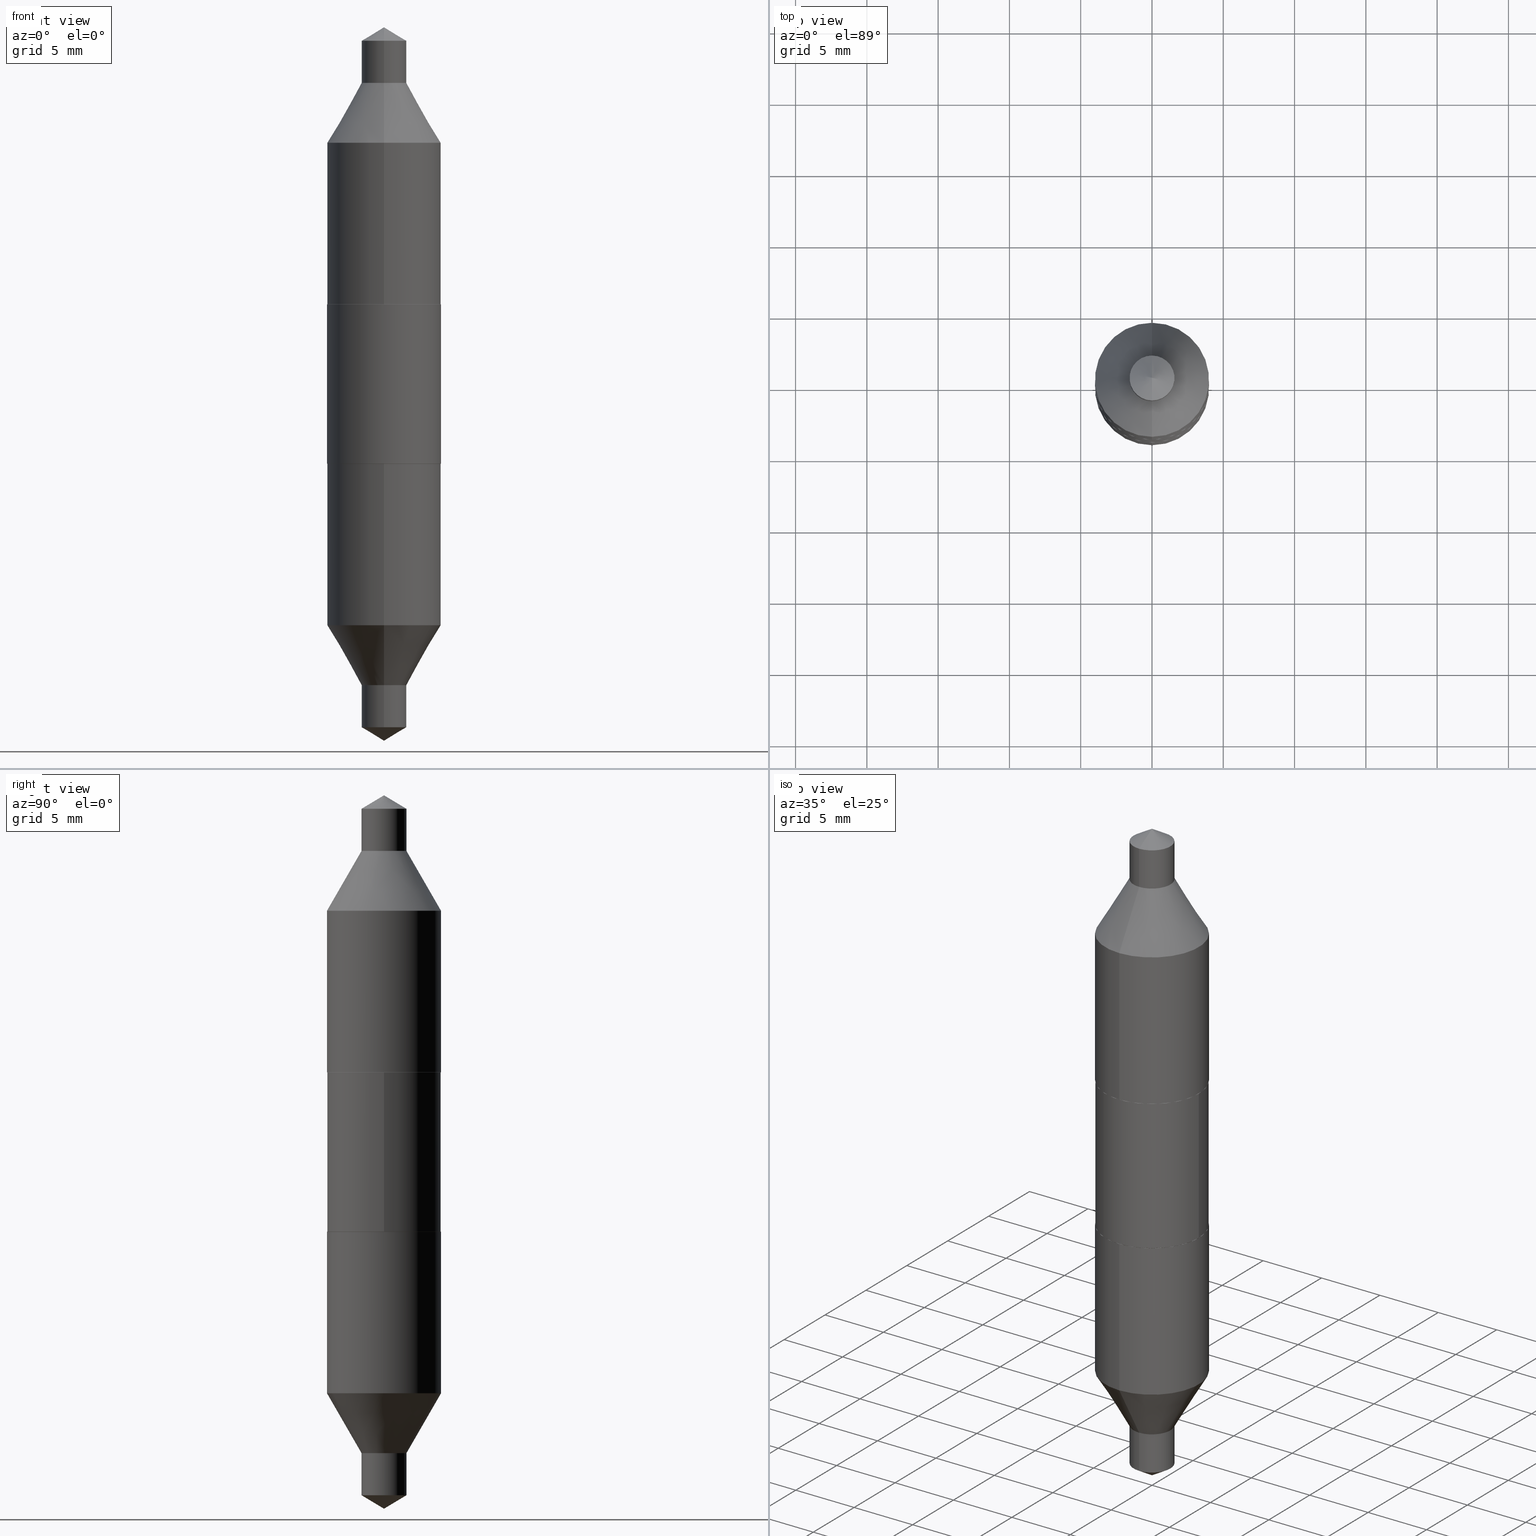
[diagram: canonical four-view strip — front | top / right | iso, engineering-drawing reading convention]
A machine part, canonical four-view strip (front | top / right | iso — engineering-drawing reading convention). The complete STEP part file that produces these views, byte-faithful:
ISO-10303-21;
HEADER;
FILE_DESCRIPTION (( 'STEP AP203' ),
    '1' );
FILE_NAME ('67049.STEP',
    '2024-04-19T15:18:10',
    ( '' ),
    ( '' ),
    'SwSTEP 2.0',
    'SolidWorks 2023',
    '' );
FILE_SCHEMA (( 'CONFIG_CONTROL_DESIGN' ));
ENDSEC;

DATA;
#1 = DIRECTION ( 'NONE',  ( -6.982962677686264344E-15, -1.000000000000000000, 3.469013325287952504E-15 ) ) ;
#2 = ORIENTED_EDGE ( 'NONE', *, *, #590, .T. ) ;
#3 = PERSON_AND_ORGANIZATION_ROLE ( 'classification_officer' ) ;
#4 = ADVANCED_FACE ( 'NONE', ( #151 ), #224, .T. ) ;
#5 = LINE ( 'NONE', #665, #392 ) ;
#6 = EDGE_LOOP ( 'NONE', ( #476, #217, #679, #511 ) ) ;
#7 = DATE_AND_TIME ( #544, #285 ) ;
#8 = ORIENTED_EDGE ( 'NONE', *, *, #218, .F. ) ;
#9 = APPLICATION_CONTEXT ( 'configuration controlled 3d designs of mechanical parts and assemblies' ) ;
#10 = CARTESIAN_POINT ( 'NONE',  ( 1.119104808822163125E-15, 0.1574999999999992795, -0.2200000000000005285 ) ) ;
#11 = VERTEX_POINT ( 'NONE', #312 ) ;
#12 = VECTOR ( 'NONE', #37, 39.37007874015748143 ) ;
#13 = CARTESIAN_POINT ( 'NONE',  ( 5.380031373607300737E-30, -7.681258945454921386E-16, -0.2200000000000000011 ) ) ;
#14 = AXIS2_PLACEMENT_3D ( 'NONE', #152, #482, #696 ) ;
#15 = DIRECTION ( 'NONE',  ( -6.982962677686265922E-15, -1.000000000000000000, 4.406206441393972551E-15 ) ) ;
#16 = ORIENTED_EDGE ( 'NONE', *, *, #639, .F. ) ;
#17 = AXIS2_PLACEMENT_3D ( 'NONE', #521, #194, #371 ) ;
#18 = CARTESIAN_POINT ( 'NONE',  ( -5.380031373607299336E-30, 7.681258945454920400E-16, 0.2199999999999999734 ) ) ;
#19 = EDGE_CURVE ( 'NONE', #595, #509, #673, .T. ) ;
#20 = DIRECTION ( 'NONE',  ( 1.000000000000000000, -6.982962677686267499E-15, 0.000000000000000000 ) ) ;
#21 = CARTESIAN_POINT ( 'NONE',  ( -1.634634905970335902E-29, 2.317425452117836237E-15, 0.6660891478771698848 ) ) ;
#22 = DIRECTION ( 'NONE',  ( -0.7071067811865715536, 2.382254525458957283E-15, -0.7071067811865232589 ) ) ;
#23 = ADVANCED_FACE ( 'NONE', ( #377 ), #589, .T. ) ;
#24 = EDGE_CURVE ( 'NONE', #458, #213, #49, .T. ) ;
#25 = ADVANCED_FACE ( 'NONE', ( #261 ), #619, .T. ) ;
#26 = ORIENTED_EDGE ( 'NONE', *, *, #439, .F. ) ;
#27 = CARTESIAN_POINT ( 'NONE',  ( 5.380031373607300737E-30, -7.681258945454921386E-16, -0.2200000000000000011 ) ) ;
#28 = VERTEX_POINT ( 'NONE', #566 ) ;
#29 = DIRECTION ( 'NONE',  ( -2.432613365236688124E-29, 3.509891061967582916E-15, 1.000000000000000000 ) ) ;
#30 = ORIENTED_EDGE ( 'NONE', *, *, #351, .T. ) ;
#31 = DIRECTION ( 'NONE',  ( 1.000000000000000000, -6.982962677686267499E-15, 0.000000000000000000 ) ) ;
#32 = ORIENTED_EDGE ( 'NONE', *, *, #193, .F. ) ;
#33 = AXIS2_PLACEMENT_3D ( 'NONE', #584, #102, #316 ) ;
#34 = CARTESIAN_POINT ( 'NONE',  ( -5.380031373607300737E-30, 7.681258945454921386E-16, 0.2200000000000000011 ) ) ;
#35 = VECTOR ( 'NONE', #477, 39.37007874015748143 ) ;
#36 = VECTOR ( 'NONE', #699, 39.37007874015748143 ) ;
#37 = DIRECTION ( 'NONE',  ( -2.445468806185136877E-29, 3.491481338843145188E-15, 1.000000000000000000 ) ) ;
#38 = ADVANCED_FACE ( 'NONE', ( #85 ), #157, .T. ) ;
#39 = CARTESIAN_POINT ( 'NONE',  ( -2.327040352225928609E-29, 3.295642098991542367E-15, 0.9477466416202916522 ) ) ;
#40 = CYLINDRICAL_SURFACE ( 'NONE', #518, 0.1575000000000000289 ) ;
#41 = ADVANCED_FACE ( 'NONE', ( #293 ), #202, .T. ) ;
#42 = CIRCLE ( 'NONE', #401, 0.1575000000000000289 ) ;
#43 = DIRECTION ( 'NONE',  ( 5.880594550222097024E-15, 0.8571673007021126667, -0.5150380749100534894 ) ) ;
#44 = CYLINDRICAL_SURFACE ( 'NONE', #146, 0.06200000000000001343 ) ;
#45 = DIRECTION ( 'NONE',  ( -2.445468806185136597E-29, 3.491481338843145583E-15, 1.000000000000000000 ) ) ;
#46 = ADVANCED_FACE ( 'NONE', ( #242 ), #183, .T. ) ;
#47 = CIRCLE ( 'NONE', #168, 0.1570000000000000007 ) ;
#48 = DIRECTION ( 'NONE',  ( -2.445468806185136597E-29, 3.491481338843145583E-15, 1.000000000000000000 ) ) ;
#49 = LINE ( 'NONE', #136, #82 ) ;
#50 = DIRECTION ( 'NONE',  ( -2.445468806185136597E-29, 3.491481338843145583E-15, 1.000000000000000000 ) ) ;
#51 = ADVANCED_FACE ( 'NONE', ( #427 ), #40, .T. ) ;
#52 = ORIENTED_EDGE ( 'NONE', *, *, #218, .T. ) ;
#53 = EDGE_LOOP ( 'NONE', ( #321, #107, #690, #274 ) ) ;
#54 = FACE_OUTER_BOUND ( 'NONE', #67, .T. ) ;
#55 = VERTEX_POINT ( 'NONE', #525 ) ;
#56 = PERSON_AND_ORGANIZATION ( #181, #414 ) ;
#57 = VERTEX_POINT ( 'NONE', #154 ) ;
#58 = CARTESIAN_POINT ( 'NONE',  ( 2.025546210202964853E-29, -2.914424278938668661E-15, -0.8315000000000000169 ) ) ;
#59 = CARTESIAN_POINT ( 'NONE',  ( -1.099816621735592016E-15, -0.1574999999999992517, 0.2200000000000005562 ) ) ;
#60 = EDGE_LOOP ( 'NONE', ( #26, #30, #480, #163 ) ) ;
#61 = DIRECTION ( 'NONE',  ( 1.000000000000000000, 0.000000000000000000, 0.000000000000000000 ) ) ;
#62 = ADVANCED_FACE ( 'NONE', ( #372 ), #555, .T. ) ;
#63 = DIRECTION ( 'NONE',  ( -2.445468806185136597E-29, 3.491481338843145583E-15, 1.000000000000000000 ) ) ;
#64 = ORIENTED_EDGE ( 'NONE', *, *, #193, .T. ) ;
#65 = APPROVAL_DATE_TIME ( #534, #669 ) ;
#66 = DIRECTION ( 'NONE',  ( 2.458324247133585070E-29, -3.473071615718708250E-15, -1.000000000000000000 ) ) ;
#67 = EDGE_LOOP ( 'NONE', ( #244, #266 ) ) ;
#68 = CARTESIAN_POINT ( 'NONE',  ( 5.380031373607300737E-30, -7.681258945454921386E-16, -0.2200000000000000011 ) ) ;
#69 = ORIENTED_EDGE ( 'NONE', *, *, #561, .F. ) ;
#70 = COORDINATED_UNIVERSAL_TIME_OFFSET ( 5, 0, .BEHIND. ) ;
#71 = EDGE_CURVE ( 'NONE', #625, #55, #167, .T. ) ;
#72 = ORIENTED_EDGE ( 'NONE', *, *, #241, .F. ) ;
#73 = EDGE_CURVE ( 'NONE', #462, #294, #505, .T. ) ;
#74 = CARTESIAN_POINT ( 'NONE',  ( -5.380031373607300737E-30, 7.681258945454921386E-16, 0.2200000000000000011 ) ) ;
#75 = CIRCLE ( 'NONE', #129, 0.1570000000000000007 ) ;
#76 = PRODUCT_DEFINITION_FORMATION_WITH_SPECIFIED_SOURCE ( 'ANY', '', #288, .NOT_KNOWN. ) ;
#77 = AXIS2_PLACEMENT_3D ( 'NONE', #108, #490, #1 ) ;
#78 = DIRECTION ( 'NONE',  ( -2.432613365236688124E-29, 3.509891061967582916E-15, 1.000000000000000000 ) ) ;
#79 = FACE_OUTER_BOUND ( 'NONE', #60, .T. ) ;
#80 = VECTOR ( 'NONE', #22, 39.37007874015748854 ) ;
#81 = APPROVAL ( #438, 'UNSPECIFIED' ) ;
#82 = VECTOR ( 'NONE', #620, 39.37007874015748143 ) ;
#83 = ORIENTED_EDGE ( 'NONE', *, *, #24, .T. ) ;
#84 = CONICAL_SURFACE ( 'NONE', #353, 0.1570000000000000007, 0.7853981633974824739 ) ;
#85 = FACE_OUTER_BOUND ( 'NONE', #279, .T. ) ;
#86 = CC_DESIGN_APPROVAL ( #81, ( #76 ) ) ;
#87 = ORIENTED_EDGE ( 'NONE', *, *, #71, .T. ) ;
#88 = ORIENTED_EDGE ( 'NONE', *, *, #451, .F. ) ;
#89 = CARTESIAN_POINT ( 'NONE',  ( -5.380031373607300737E-30, 7.681258945454921386E-16, 0.2200000000000000011 ) ) ;
#90 = ORIENTED_EDGE ( 'NONE', *, *, #643, .T. ) ;
#91 = DIRECTION ( 'NONE',  ( 1.000000000000000000, -6.982962677686266711E-15, 0.000000000000000000 ) ) ;
#92 = CC_DESIGN_PERSON_AND_ORGANIZATION_ASSIGNMENT ( #156, #3, ( #468 ) ) ;
#93 = DIRECTION ( 'NONE',  ( -2.458324247133585070E-29, 3.473071615718708250E-15, 1.000000000000000000 ) ) ;
#94 = CARTESIAN_POINT ( 'NONE',  ( 0.000000000000000000, 0.000000000000000000, 0.000000000000000000 ) ) ;
#95 = CARTESIAN_POINT ( 'NONE',  ( -5.380031373607299336E-30, 7.681258945454920400E-16, 0.2199999999999999734 ) ) ;
#96 = DIRECTION ( 'NONE',  ( -1.000000000000000000, 6.982962677686265922E-15, -4.876176775795935793E-29 ) ) ;
#97 = CARTESIAN_POINT ( 'NONE',  ( 1.080528434649005327E-15, 0.1575000000000007505, 0.2199999999999994738 ) ) ;
#98 = DIRECTION ( 'NONE',  ( -6.982962677686265922E-15, -1.000000000000000000, 3.304654831045479019E-15 ) ) ;
#99 = EDGE_CURVE ( 'NONE', #236, #294, #519, .T. ) ;
#100 = FACE_OUTER_BOUND ( 'NONE', #597, .T. ) ;
#101 = CARTESIAN_POINT ( 'NONE',  ( 4.405364961712852849E-16, 0.06199999999999709216, -0.8315000000000002389 ) ) ;
#102 = DIRECTION ( 'NONE',  ( 2.458324247133585070E-29, -3.473071615718708250E-15, -1.000000000000000000 ) ) ;
#103 = VECTOR ( 'NONE', #283, 39.37007874015748143 ) ;
#104 = FACE_OUTER_BOUND ( 'NONE', #173, .T. ) ;
#105 = CIRCLE ( 'NONE', #259, 0.06200000000000001343 ) ;
#106 = DATE_TIME_ROLE ( 'classification_date' ) ;
#107 = ORIENTED_EDGE ( 'NONE', *, *, #307, .T. ) ;
#108 = CARTESIAN_POINT ( 'NONE',  ( 1.623165560573778972E-29, -2.333850207520305882E-15, -0.6660891478771698848 ) ) ;
#109 = ORIENTED_EDGE ( 'NONE', *, *, #594, .T. ) ;
#110 = CALENDAR_DATE ( 2024, 19, 4 ) ;
#111 = DIRECTION ( 'NONE',  ( -2.432613365236688124E-29, 3.509891061967582916E-15, 1.000000000000000000 ) ) ;
#112 = EDGE_CURVE ( 'NONE', #55, #591, #682, .T. ) ;
#113 = VERTEX_POINT ( 'NONE', #648 ) ;
#114 = CALENDAR_DATE ( 2024, 19, 4 ) ;
#115 = AXIS2_PLACEMENT_3D ( 'NONE', #582, #533, #510 ) ;
#116 = LINE ( 'NONE', #268, #36 ) ;
#117 = CIRCLE ( 'NONE', #446, 0.06200000000000000649 ) ;
#118 = ORIENTED_EDGE ( 'NONE', *, *, #421, .T. ) ;
#119 = CALENDAR_DATE ( 2024, 19, 4 ) ;
#120 = DIRECTION ( 'NONE',  ( -6.982962677686264344E-15, -1.000000000000000000, 3.469013325287952504E-15 ) ) ;
#121 = DIRECTION ( 'NONE',  ( 1.000000000000000000, -6.982962677686264344E-15, 0.000000000000000000 ) ) ;
#122 = DATE_AND_TIME ( #110, #239 ) ;
#123 = ADVANCED_FACE ( 'NONE', ( #161 ), #486, .F. ) ;
#124 = ORIENTED_EDGE ( 'NONE', *, *, #267, .T. ) ;
#125 = LINE ( 'NONE', #169, #80 ) ;
#126 = ORIENTED_EDGE ( 'NONE', *, *, #514, .F. ) ;
#127 = CARTESIAN_POINT ( 'NONE',  ( 0.1570000000000000007, -1.864451034942235626E-15, -0.2200000000000000011 ) ) ;
#128 = CLOSED_SHELL ( 'NONE', ( #271, #687, #507, #41, #186, #23, #209, #4 ) ) ;
#129 = AXIS2_PLACEMENT_3D ( 'NONE', #681, #63, #121 ) ;
#130 = PRODUCT_DEFINITION_SHAPE ( 'NONE', 'NONE',  #546 ) ;
#131 = CONICAL_SURFACE ( 'NONE', #269, 0.06200000000000000649, 0.5235987755982927094 ) ;
#132 = FACE_OUTER_BOUND ( 'NONE', #500, .T. ) ;
#133 = CC_DESIGN_PERSON_AND_ORGANIZATION_ASSIGNMENT ( #56, #550, ( #288 ) ) ;
#134 = ORIENTED_EDGE ( 'NONE', *, *, #599, .F. ) ;
#135 = DIRECTION ( 'NONE',  ( -2.458324247133585070E-29, 3.473071615718708250E-15, 1.000000000000000000 ) ) ;
#136 = CARTESIAN_POINT ( 'NONE',  ( -2.421449383426581209E-29, 3.420975541482927393E-15, 0.9849999999999999867 ) ) ;
#137 = EDGE_LOOP ( 'NONE', ( #685, #675, #2, #90 ) ) ;
#138 = APPROVAL_PERSON_ORGANIZATION ( #264, #669, #598 ) ;
#139 = LINE ( 'NONE', #256, #379 ) ;
#140 = EDGE_LOOP ( 'NONE', ( #491, #502, #443 ) ) ;
#141 = CARTESIAN_POINT ( 'NONE',  ( 2.025546210202964853E-29, -2.914424278938668661E-15, -0.8315000000000000169 ) ) ;
#142 = EDGE_CURVE ( 'NONE', #213, #462, #329, .T. ) ;
#143 = LINE ( 'NONE', #299, #12 ) ;
#144 = CONICAL_SURFACE ( 'NONE', #654, 65.52281426576907108, 1.029744258676658752 ) ;
#145 = CARTESIAN_POINT ( 'NONE',  ( 2.396124164758137629E-29, -3.457242696038069614E-15, -0.9849999999999999867 ) ) ;
#146 = AXIS2_PLACEMENT_3D ( 'NONE', #198, #251, #420 ) ;
#147 = CARTESIAN_POINT ( 'NONE',  ( -2.041268414482917372E-29, 2.891909187557482556E-15, 0.8315000000000000169 ) ) ;
#148 = ADVANCED_FACE ( 'NONE', ( #227 ), #508, .T. ) ;
#149 = FACE_OUTER_BOUND ( 'NONE', #226, .T. ) ;
#150 = FACE_OUTER_BOUND ( 'NONE', #165, .T. ) ;
#151 = FACE_OUTER_BOUND ( 'NONE', #137, .T. ) ;
#152 = CARTESIAN_POINT ( 'NONE',  ( 5.380031373607299336E-30, -7.681258945454920400E-16, -0.2199999999999999734 ) ) ;
#153 = DIRECTION ( 'NONE',  ( -2.458324247133585070E-29, 3.473071615718708250E-15, 1.000000000000000000 ) ) ;
#154 = CARTESIAN_POINT ( 'NONE',  ( -1.099816621735581367E-15, -0.1575000000000007505, -0.2199999999999994738 ) ) ;
#155 = DIRECTION ( 'NONE',  ( -2.438088387897960049E-29, 3.491481338843145188E-15, 1.000000000000000000 ) ) ;
#156 = PERSON_AND_ORGANIZATION ( #181, #414 ) ;
#157 = CYLINDRICAL_SURFACE ( 'NONE', #585, 0.06200000000000001343 ) ;
#158 = VECTOR ( 'NONE', #111, 39.37007874015748143 ) ;
#159 = ORIENTED_EDGE ( 'NONE', *, *, #292, .T. ) ;
#160 = MECHANICAL_CONTEXT ( 'NONE', #9, 'mechanical' ) ;
#161 = FACE_OUTER_BOUND ( 'NONE', #537, .T. ) ;
#162 = EDGE_CURVE ( 'NONE', #28, #437, #276, .T. ) ;
#163 = ORIENTED_EDGE ( 'NONE', *, *, #590, .F. ) ;
#164 = APPLICATION_PROTOCOL_DEFINITION ( 'international standard', 'config_control_design', 1994, #9 ) ;
#165 = EDGE_LOOP ( 'NONE', ( #126, #124, #616, #409 ) ) ;
#166 = CALENDAR_DATE ( 2024, 19, 4 ) ;
#167 = LINE ( 'NONE', #336, #158 ) ;
#168 = AXIS2_PLACEMENT_3D ( 'NONE', #13, #672, #175 ) ;
#169 = CARTESIAN_POINT ( 'NONE',  ( -0.1570000000000000007, 1.845224080195622605E-15, 0.2200000000000000011 ) ) ;
#170 = ORIENTED_EDGE ( 'NONE', *, *, #99, .T. ) ;
#171 = CARTESIAN_POINT ( 'NONE',  ( 0.000000000000000000, 0.000000000000000000, 0.000000000000000000 ) ) ;
#172 = ADVANCED_FACE ( 'NONE', ( #663 ), #258, .T. ) ;
#173 = EDGE_LOOP ( 'NONE', ( #281, #64, #265, #484 ) ) ;
#174 = FACE_OUTER_BOUND ( 'NONE', #634, .T. ) ;
#175 = DIRECTION ( 'NONE',  ( 1.000000000000000000, -6.982962677686264344E-15, 0.000000000000000000 ) ) ;
#176 = CIRCLE ( 'NONE', #538, 0.06200000000000001343 ) ;
#177 = LINE ( 'NONE', #606, #348 ) ;
#178 = CARTESIAN_POINT ( 'NONE',  ( 4.253508758618117932E-16, 0.06200000000000333716, 0.9477466416202913191 ) ) ;
#179 = EDGE_CURVE ( 'NONE', #617, #57, #627, .T. ) ;
#180 = VERTEX_POINT ( 'NONE', #640 ) ;
#181 = PERSON ( 'UNSPECIFIED', 'UNSPECIFIED', 'UNSPECIFIED', ('UNSPECIFIED'), ('UNSPECIFIED'), ('UNSPECIFIED') ) ;
#182 = ORIENTED_EDGE ( 'NONE', *, *, #307, .F. ) ;
#183 = CYLINDRICAL_SURFACE ( 'NONE', #680, 0.1575000000000000289 ) ;
#184 = AXIS2_PLACEMENT_3D ( 'NONE', #27, #257, #199 ) ;
#185 = ORIENTED_EDGE ( 'NONE', *, *, #73, .F. ) ;
#186 = ADVANCED_FACE ( 'NONE', ( #586 ), #587, .T. ) ;
#187 = VECTOR ( 'NONE', #384, 39.37007874015748143 ) ;
#188 = CARTESIAN_POINT ( 'NONE',  ( 0.1575000000000000289, -1.866196775611657524E-15, -0.2195000000000000007 ) ) ;
#189 = APPROVAL_PERSON_ORGANIZATION ( #382, #613, #596 ) ;
#190 = VECTOR ( 'NONE', #692, 39.37007874015748143 ) ;
#191 = LENGTH_MEASURE_WITH_UNIT ( LENGTH_MEASURE( 0.02539999999999999897 ), #201 );
#192 = ORIENTED_EDGE ( 'NONE', *, *, #426, .F. ) ;
#193 = EDGE_CURVE ( 'NONE', #447, #180, #249, .T. ) ;
#194 = DIRECTION ( 'NONE',  ( -2.432613365236688124E-29, 3.509891061967582916E-15, 1.000000000000000000 ) ) ;
#195 = ADVANCED_FACE ( 'NONE', ( #423 ), #305, .T. ) ;
#196 = CC_DESIGN_PERSON_AND_ORGANIZATION_ASSIGNMENT ( #603, #334, ( #546 ) ) ;
#197 = DIRECTION ( 'NONE',  ( -2.445468806185136597E-29, 3.491481338843145583E-15, 1.000000000000000000 ) ) ;
#198 = CARTESIAN_POINT ( 'NONE',  ( 5.380031373607299336E-30, -7.681258945454920400E-16, -0.2199999999999999734 ) ) ;
#199 = DIRECTION ( 'NONE',  ( -1.000000000000000000, 6.982962677686265922E-15, -4.876176775795935793E-29 ) ) ;
#200 = CIRCLE ( 'NONE', #600, 0.1575000000000000011 ) ;
#201 =( LENGTH_UNIT ( ) NAMED_UNIT ( * ) SI_UNIT ( $, .METRE. ) );
#202 = PLANE ( 'NONE',  #184 ) ;
#203 =( CONVERSION_BASED_UNIT ( 'INCH', #191 ) LENGTH_UNIT ( ) NAMED_UNIT ( #330 ) );
#204 = ORIENTED_EDGE ( 'NONE', *, *, #631, .T. ) ;
#205 = VECTOR ( 'NONE', #393, 39.37007874015748143 ) ;
#206 = AXIS2_PLACEMENT_3D ( 'NONE', #562, #238, #560 ) ;
#207 = DIRECTION ( 'NONE',  ( -6.982962677686265922E-15, -1.000000000000000000, 4.406206441393972551E-15 ) ) ;
#208 = CARTESIAN_POINT ( 'NONE',  ( 5.367804029576374824E-30, -7.663801538760705364E-16, -0.2195000000000000007 ) ) ;
#209 = ADVANCED_FACE ( 'NONE', ( #149 ), #366, .T. ) ;
#210 = VECTOR ( 'NONE', #445, 39.37007874015748143 ) ;
#211 = PLANE ( 'NONE',  #436 ) ;
#212 = DIRECTION ( 'NONE',  ( -2.432613365236688124E-29, 3.509891061967582916E-15, 1.000000000000000000 ) ) ;
#213 = VERTEX_POINT ( 'NONE', #310 ) ;
#214 = CIRCLE ( 'NONE', #77, 0.1575000000000000289 ) ;
#215 = ADVANCED_FACE ( 'NONE', ( #528 ), #255, .T. ) ;
#216 = CARTESIAN_POINT ( 'NONE',  ( -5.713111244066927989E-30, 7.204269613227826822E-16, 0.2199999999999999734 ) ) ;
#217 = ORIENTED_EDGE ( 'NONE', *, *, #514, .T. ) ;
#218 = EDGE_CURVE ( 'NONE', #180, #394, #248, .T. ) ;
#219 = DIRECTION ( 'NONE',  ( -6.982962677686265922E-15, -1.000000000000000000, 4.406206441393972551E-15 ) ) ;
#220 = ORIENTED_EDGE ( 'NONE', *, *, #439, .T. ) ;
#221 = DATE_AND_TIME ( #114, #489 ) ;
#222 = CARTESIAN_POINT ( 'NONE',  ( 2.401830158674149649E-29, -3.449142417863316824E-15, -0.9849999999999999867 ) ) ;
#223 = VERTEX_POINT ( 'NONE', #661 ) ;
#224 = CONICAL_SURFACE ( 'NONE', #422, 0.1570000000000000007, 0.7853981633974824739 ) ;
#225 = CARTESIAN_POINT ( 'NONE',  ( 4.253508758618130751E-16, 0.06200000000000290001, 0.8314999999999996838 ) ) ;
#226 = EDGE_LOOP ( 'NONE', ( #516, #220 ) ) ;
#227 = FACE_OUTER_BOUND ( 'NONE', #659, .T. ) ;
#228 = LOCAL_TIME ( 11, 18, 10.00000000000000000, #319 ) ;
#229 = DIRECTION ( 'NONE',  ( 2.458324247133585070E-29, -3.473071615718708250E-15, -1.000000000000000000 ) ) ;
#230 = CARTESIAN_POINT ( 'NONE',  ( -2.041268414482917372E-29, 2.891909187557482556E-15, 0.8315000000000000169 ) ) ;
#231 = CARTESIAN_POINT ( 'NONE',  ( -4.329436860165689754E-16, -0.06199999999999711298, 0.8315000000000002389 ) ) ;
#232 = CIRCLE ( 'NONE', #298, 0.1570000000000000007 ) ;
#233 = CARTESIAN_POINT ( 'NONE',  ( -1.634634905970335902E-29, 2.317425452117836237E-15, 0.6660891478771698848 ) ) ;
#234 = DIRECTION ( 'NONE',  ( -2.432613365236688124E-29, 3.509891061967582916E-15, 1.000000000000000000 ) ) ;
#235 = ADVANCED_FACE ( 'NONE', ( #456 ), #290, .T. ) ;
#236 = VERTEX_POINT ( 'NONE', #280 ) ;
#237 = ORIENTED_EDGE ( 'NONE', *, *, #297, .T. ) ;
#238 = DIRECTION ( 'NONE',  ( -2.432613365236688124E-29, 3.509891061967582916E-15, 1.000000000000000000 ) ) ;
#239 = LOCAL_TIME ( 11, 18, 10.00000000000000000, #70 ) ;
#240 = ORIENTED_EDGE ( 'NONE', *, *, #403, .F. ) ;
#241 = EDGE_CURVE ( 'NONE', #247, #447, #47, .T. ) ;
#242 = FACE_OUTER_BOUND ( 'NONE', #53, .T. ) ;
#243 = EDGE_CURVE ( 'NONE', #462, #368, #117, .T. ) ;
#244 = ORIENTED_EDGE ( 'NONE', *, *, #569, .F. ) ;
#245 = DIRECTION ( 'NONE',  ( -6.982962677686265922E-15, -1.000000000000000000, 3.304654831045479019E-15 ) ) ;
#246 = CARTESIAN_POINT ( 'NONE',  ( -2.041268414482917372E-29, 2.891909187557482556E-15, 0.8315000000000000169 ) ) ;
#247 = VERTEX_POINT ( 'NONE', #432 ) ;
#248 = CIRCLE ( 'NONE', #646, 0.1575000000000000289 ) ;
#249 = LINE ( 'NONE', #577, #404 ) ;
#250 = LINE ( 'NONE', #630, #411 ) ;
#251 = DIRECTION ( 'NONE',  ( -2.432613365236688124E-29, 3.509891061967582916E-15, 1.000000000000000000 ) ) ;
#252 = CARTESIAN_POINT ( 'NONE',  ( 0.000000000000000000, 0.000000000000000000, 0.000000000000000000 ) ) ;
#253 = EDGE_CURVE ( 'NONE', #57, #11, #200, .T. ) ;
#254 = DIRECTION ( 'NONE',  ( -2.458324247133585070E-29, 3.473071615718708250E-15, 1.000000000000000000 ) ) ;
#255 = CYLINDRICAL_SURFACE ( 'NONE', #14, 0.06200000000000001343 ) ;
#256 = CARTESIAN_POINT ( 'NONE',  ( 0.1570000000000000007, -3.281992458512516935E-16, 0.2200000000000000011 ) ) ;
#257 = DIRECTION ( 'NONE',  ( 2.438088387897960049E-29, -3.491481338843145188E-15, -1.000000000000000000 ) ) ;
#258 = CONICAL_SURFACE ( 'NONE', #378, 65.52281426576907108, 1.029744258676658752 ) ;
#259 = AXIS2_PLACEMENT_3D ( 'NONE', #39, #153, #578 ) ;
#260 = DIRECTION ( 'NONE',  ( -2.458324247133585070E-29, 3.473071615718708250E-15, 1.000000000000000000 ) ) ;
#261 = FACE_OUTER_BOUND ( 'NONE', #645, .T. ) ;
#262 = ADVANCED_FACE ( 'NONE', ( #100 ), #313, .T. ) ;
#263 = ORIENTED_EDGE ( 'NONE', *, *, #400, .T. ) ;
#264 = PERSON_AND_ORGANIZATION ( #181, #414 ) ;
#265 = ORIENTED_EDGE ( 'NONE', *, *, #419, .F. ) ;
#266 = ORIENTED_EDGE ( 'NONE', *, *, #19, .F. ) ;
#267 = EDGE_CURVE ( 'NONE', #591, #55, #531, .T. ) ;
#268 = CARTESIAN_POINT ( 'NONE',  ( 4.405364961712823759E-16, 0.06199999999999709216, -0.8315000000000002389 ) ) ;
#269 = AXIS2_PLACEMENT_3D ( 'NONE', #465, #524, #472 ) ;
#270 = PERSON_AND_ORGANIZATION_ROLE ( 'creator' ) ;
#271 = ADVANCED_FACE ( 'NONE', ( #79 ), #84, .T. ) ;
#272 = DIRECTION ( 'NONE',  ( 1.000000000000000000, -6.982962677686264344E-15, 0.000000000000000000 ) ) ;
#273 = DIRECTION ( 'NONE',  ( -2.432613365236688124E-29, 3.509891061967582916E-15, 1.000000000000000000 ) ) ;
#274 = ORIENTED_EDGE ( 'NONE', *, *, #179, .F. ) ;
#275 = ORIENTED_EDGE ( 'NONE', *, *, #629, .F. ) ;
#276 = LINE ( 'NONE', #222, #210 ) ;
#277 = ORIENTED_EDGE ( 'NONE', *, *, #289, .T. ) ;
#278 = DIRECTION ( 'NONE',  ( -6.982962677686264344E-15, -1.000000000000000000, 3.469013325287953293E-15 ) ) ;
#279 = EDGE_LOOP ( 'NONE', ( #650, #605, #300, #642 ) ) ;
#280 = CARTESIAN_POINT ( 'NONE',  ( 1.080528434649010849E-15, 0.1575000000000023603, 0.6660891478771693297 ) ) ;
#281 = ORIENTED_EDGE ( 'NONE', *, *, #241, .T. ) ;
#282 = AXIS2_PLACEMENT_3D ( 'NONE', #652, #493, #387 ) ;
#283 = DIRECTION ( 'NONE',  ( 2.458324247133584790E-29, -3.473071615718708644E-15, -1.000000000000000000 ) ) ;
#284 = DIRECTION ( 'NONE',  ( -2.445468806185136597E-29, 3.491481338843145583E-15, 1.000000000000000000 ) ) ;
#285 = LOCAL_TIME ( 11, 18, 10.00000000000000000, #588 ) ;
#286 = CARTESIAN_POINT ( 'NONE',  ( 4.253508758618295918E-16, 0.06200000000000078365, 0.2199999999999997791 ) ) ;
#287 = EDGE_CURVE ( 'NONE', #236, #595, #5, .T. ) ;
#288 = PRODUCT ( '67049', '67049', '', ( #160 ) ) ;
#289 = EDGE_CURVE ( 'NONE', #294, #236, #412, .T. ) ;
#290 = CONICAL_SURFACE ( 'NONE', #344, 65.52281426576907108, 1.029744258676658752 ) ;
#291 = EDGE_LOOP ( 'NONE', ( #418, #52, #204, #69 ) ) ;
#292 = EDGE_CURVE ( 'NONE', #447, #247, #75, .T. ) ;
#293 = FACE_OUTER_BOUND ( 'NONE', #540, .T. ) ;
#294 = VERTEX_POINT ( 'NONE', #658 ) ;
#295 = CARTESIAN_POINT ( 'NONE',  ( -4.329436860165282505E-16, -0.06200000000000292083, -0.8314999999999996838 ) ) ;
#296 = ORIENTED_EDGE ( 'NONE', *, *, #536, .T. ) ;
#297 = EDGE_CURVE ( 'NONE', #326, #368, #499, .T. ) ;
#298 = AXIS2_PLACEMENT_3D ( 'NONE', #34, #359, #91 ) ;
#299 = CARTESIAN_POINT ( 'NONE',  ( 0.1575000000000000289, -1.099816621735587283E-15, 7.679978421878599434E-30 ) ) ;
#300 = ORIENTED_EDGE ( 'NONE', *, *, #142, .T. ) ;
#301 = CARTESIAN_POINT ( 'NONE',  ( -0.1570000000000000007, 3.500754277719761618E-16, -0.2200000000000000011 ) ) ;
#302 = CARTESIAN_POINT ( 'NONE',  ( -1.099816621735592411E-15, -0.1574999999999992795, 0.2200000000000005285 ) ) ;
#303 = AXIS2_PLACEMENT_3D ( 'NONE', #545, #66, #396 ) ;
#304 = CIRCLE ( 'NONE', #684, 0.1575000000000000011 ) ;
#305 = CYLINDRICAL_SURFACE ( 'NONE', #474, 0.1575000000000000289 ) ;
#306 = DIRECTION ( 'NONE',  ( 1.000000000000000000, -6.982962677686267499E-15, 4.876176775795935232E-29 ) ) ;
#307 = EDGE_CURVE ( 'NONE', #223, #11, #504, .T. ) ;
#308 = DIRECTION ( 'NONE',  ( -2.432613365236688124E-29, 3.509891061967582916E-15, 1.000000000000000000 ) ) ;
#309 = CARTESIAN_POINT ( 'NONE',  ( -2.415842589307958785E-29, 3.429075819657680183E-15, 0.9849999999999999867 ) ) ;
#310 = CARTESIAN_POINT ( 'NONE',  ( -4.329436860165720816E-16, -0.06199999999999673828, 0.9477466416202918742 ) ) ;
#311 = DIRECTION ( 'NONE',  ( 2.458324247133584790E-29, -3.473071615718708644E-15, -1.000000000000000000 ) ) ;
#312 = CARTESIAN_POINT ( 'NONE',  ( 1.119104808822174169E-15, 0.1574999999999992517, -0.2200000000000005562 ) ) ;
#313 = CYLINDRICAL_SURFACE ( 'NONE', #662, 0.1575000000000000289 ) ;
#314 = DIRECTION ( 'NONE',  ( 6.982962677686265922E-15, 1.000000000000000000, -3.473071615718708644E-15 ) ) ;
#315 = AXIS2_PLACEMENT_3D ( 'NONE', #147, #431, #352 ) ;
#316 = DIRECTION ( 'NONE',  ( -6.982962677686263555E-15, -1.000000000000000000, 3.468864327941560293E-15 ) ) ;
#317 = EDGE_CURVE ( 'NONE', #55, #617, #670, .T. ) ;
#318 = CIRCLE ( 'NONE', #17, 0.06200000000000001343 ) ;
#319 = COORDINATED_UNIVERSAL_TIME_OFFSET ( 5, 0, .BEHIND. ) ;
#320 = DIRECTION ( 'NONE',  ( 1.000000000000000000, -6.982962677686267499E-15, 4.876176775795935232E-29 ) ) ;
#321 = ORIENTED_EDGE ( 'NONE', *, *, #467, .T. ) ;
#322 = APPROVAL_DATE_TIME ( #221, #81 ) ;
#323 = AXIS2_PLACEMENT_3D ( 'NONE', #671, #50, #523 ) ;
#324 = ORIENTED_EDGE ( 'NONE', *, *, #162, .T. ) ;
#325 = APPROVAL_ROLE ( '' ) ;
#326 = VERTEX_POINT ( 'NONE', #178 ) ;
#327 = SHAPE_DEFINITION_REPRESENTATION ( #130, #349 ) ;
#328 = UNCERTAINTY_MEASURE_WITH_UNIT (LENGTH_MEASURE( 1.000000000000000082E-05 ), #203, 'distance_accuracy_value', 'NONE');
#329 = LINE ( 'NONE', #657, #187 ) ;
#330 = DIMENSIONAL_EXPONENTS ( 1.000000000000000000, 0.000000000000000000, 0.000000000000000000, 0.000000000000000000, 0.000000000000000000, 0.000000000000000000, 0.000000000000000000 ) ;
#331 = ORIENTED_EDGE ( 'NONE', *, *, #400, .F. ) ;
#332 = DIRECTION ( 'NONE',  ( -2.432613365236688124E-29, 3.509891061967582916E-15, 1.000000000000000000 ) ) ;
#333 = EDGE_LOOP ( 'NONE', ( #356, #83, #693 ) ) ;
#334 = PERSON_AND_ORGANIZATION_ROLE ( 'creator' ) ;
#335 = CARTESIAN_POINT ( 'NONE',  ( -9.337322737196109749E-28, 1.347314949220879946E-13, 38.38507874015748200 ) ) ;
#336 = CARTESIAN_POINT ( 'NONE',  ( -4.329436860165431895E-16, -0.06200000000000078365, -0.2199999999999997791 ) ) ;
#337 = ORIENTED_EDGE ( 'NONE', *, *, #292, .F. ) ;
#338 = DIRECTION ( 'NONE',  ( -2.432613365236688124E-29, 3.509891061967582916E-15, 1.000000000000000000 ) ) ;
#339 = ORIENTED_EDGE ( 'NONE', *, *, #99, .F. ) ;
#340 = ORIENTED_EDGE ( 'NONE', *, *, #267, .F. ) ;
#341 = DIRECTION ( 'NONE',  ( -2.458324247133585070E-29, 3.473071615718708250E-15, 1.000000000000000000 ) ) ;
#342 = ORIENTED_EDGE ( 'NONE', *, *, #71, .F. ) ;
#343 = CC_DESIGN_DATE_AND_TIME_ASSIGNMENT ( #122, #444, ( #546 ) ) ;
#344 = AXIS2_PLACEMENT_3D ( 'NONE', #335, #234, #551 ) ;
#345 = DIRECTION ( 'NONE',  ( 0.7071067811865715536, -2.468850131082509496E-15, 0.7071067811865232589 ) ) ;
#346 = AXIS2_PLACEMENT_3D ( 'NONE', #644, #539, #272 ) ;
#347 = CYLINDRICAL_SURFACE ( 'NONE', #694, 0.06200000000000001343 ) ;
#348 = VECTOR ( 'NONE', #332, 39.37007874015748143 ) ;
#349 = ADVANCED_BREP_SHAPE_REPRESENTATION ( '67049', ( #355, #593, #611, #503 ), #406 ) ;
#350 = ORIENTED_EDGE ( 'NONE', *, *, #179, .T. ) ;
#351 = EDGE_CURVE ( 'NONE', #607, #113, #125, .T. ) ;
#352 = DIRECTION ( 'NONE',  ( -6.982962677686265922E-15, -1.000000000000000000, 4.406206441393972551E-15 ) ) ;
#353 = AXIS2_PLACEMENT_3D ( 'NONE', #74, #506, #494 ) ;
#354 = VERTEX_POINT ( 'NONE', #463 ) ;
#355 = MANIFOLD_SOLID_BREP ( 'Body-Move/Copy2[1]', #689 ) ;
#356 = ORIENTED_EDGE ( 'NONE', *, *, #498, .F. ) ;
#357 = FACE_OUTER_BOUND ( 'NONE', #568, .T. ) ;
#358 = ORIENTED_EDGE ( 'NONE', *, *, #287, .F. ) ;
#359 = DIRECTION ( 'NONE',  ( -2.445468806185136597E-29, 3.491481338843145583E-15, 1.000000000000000000 ) ) ;
#360 = CARTESIAN_POINT ( 'NONE',  ( -5.380031373607299336E-30, 7.681258945454920400E-16, 0.2199999999999999734 ) ) ;
#361 = FACE_OUTER_BOUND ( 'NONE', #466, .T. ) ;
#362 = PRODUCT_RELATED_PRODUCT_CATEGORY ( 'detail', '', ( #288 ) ) ;
#363 = DIRECTION ( 'NONE',  ( 3.430248998885749215E-15, 0.4999999999999916178, -0.8660254037844433705 ) ) ;
#364 = DIRECTION ( 'NONE',  ( 2.458324247133585070E-29, -3.473071615718708250E-15, -1.000000000000000000 ) ) ;
#365 = AXIS2_PLACEMENT_3D ( 'NONE', #515, #48, #31 ) ;
#366 = PLANE ( 'NONE',  #488 ) ;
#367 = CYLINDRICAL_SURFACE ( 'NONE', #633, 0.1575000000000000289 ) ;
#368 = VERTEX_POINT ( 'NONE', #225 ) ;
#369 = ADVANCED_FACE ( 'NONE', ( #448 ), #527, .T. ) ;
#370 = DIRECTION ( 'NONE',  ( -6.982962677686264344E-15, -1.000000000000000000, 3.469013325287953293E-15 ) ) ;
#371 = DIRECTION ( 'NONE',  ( -6.982962677686265922E-15, -1.000000000000000000, 4.406206441393971762E-15 ) ) ;
#372 = FACE_OUTER_BOUND ( 'NONE', #140, .T. ) ;
#373 = ADVANCED_FACE ( 'NONE', ( #174 ), #144, .T. ) ;
#374 = CIRCLE ( 'NONE', #323, 0.1570000000000000007 ) ;
#375 = CARTESIAN_POINT ( 'NONE',  ( 5.380031373607300737E-30, -7.681258945454921386E-16, -0.2200000000000000011 ) ) ;
#376 = DATE_AND_TIME ( #166, #674 ) ;
#377 = FACE_OUTER_BOUND ( 'NONE', #291, .T. ) ;
#378 = AXIS2_PLACEMENT_3D ( 'NONE', #604, #563, #530 ) ;
#379 = VECTOR ( 'NONE', #478, 39.37007874015748854 ) ;
#380 = DIRECTION ( 'NONE',  ( -2.432613365236688124E-29, 3.509891061967582916E-15, 1.000000000000000000 ) ) ;
#381 = ORIENTED_EDGE ( 'NONE', *, *, #569, .T. ) ;
#382 = PERSON_AND_ORGANIZATION ( #181, #414 ) ;
#383 = CC_DESIGN_SECURITY_CLASSIFICATION ( #468, ( #76 ) ) ;
#384 = DIRECTION ( 'NONE',  ( 2.458324247133584790E-29, -3.473071615718708644E-15, -1.000000000000000000 ) ) ;
#385 = EDGE_LOOP ( 'NONE', ( #358, #440, #697, #381 ) ) ;
#386 = COORDINATED_UNIVERSAL_TIME_OFFSET ( 5, 0, .BEHIND. ) ;
#387 = DIRECTION ( 'NONE',  ( 6.982962677686265922E-15, 1.000000000000000000, -3.509891061967582916E-15 ) ) ;
#388 = EDGE_CURVE ( 'NONE', #180, #113, #398, .T. ) ;
#389 = ORIENTED_EDGE ( 'NONE', *, *, #112, .F. ) ;
#390 = APPROVAL_STATUS ( 'not_yet_approved' ) ;
#391 = AXIS2_PLACEMENT_3D ( 'NONE', #252, #45, #320 ) ;
#392 = VECTOR ( 'NONE', #542, 39.37007874015748143 ) ;
#393 = DIRECTION ( 'NONE',  ( -2.445468806185136877E-29, 3.491481338843145188E-15, 1.000000000000000000 ) ) ;
#394 = VERTEX_POINT ( 'NONE', #188 ) ;
#395 = DIRECTION ( 'NONE',  ( 0.000000000000000000, 0.000000000000000000, 1.000000000000000000 ) ) ;
#396 = DIRECTION ( 'NONE',  ( -6.982962677686265922E-15, -1.000000000000000000, 4.406206441393972551E-15 ) ) ;
#397 = ORIENTED_EDGE ( 'NONE', *, *, #243, .F. ) ;
#398 = LINE ( 'NONE', #405, #205 ) ;
#399 = ORIENTED_EDGE ( 'NONE', *, *, #162, .F. ) ;
#400 = EDGE_CURVE ( 'NONE', #437, #591, #177, .T. ) ;
#401 = AXIS2_PLACEMENT_3D ( 'NONE', #416, #453, #402 ) ;
#402 = DIRECTION ( 'NONE',  ( 1.000000000000000000, -6.982962677686267499E-15, 0.000000000000000000 ) ) ;
#403 = EDGE_CURVE ( 'NONE', #11, #57, #608, .T. ) ;
#404 = VECTOR ( 'NONE', #464, 39.37007874015748854 ) ;
#405 = CARTESIAN_POINT ( 'NONE',  ( -0.1575000000000000289, 1.119104808822157998E-15, -7.747322767151478386E-30 ) ) ;
#406 =( GEOMETRIC_REPRESENTATION_CONTEXT ( 3 ) GLOBAL_UNCERTAINTY_ASSIGNED_CONTEXT ( ( #328 ) ) GLOBAL_UNIT_ASSIGNED_CONTEXT ( ( #203, #434, #702 ) ) REPRESENTATION_CONTEXT ( 'NONE', 'WORKASPACE' ) );
#407 = ADVANCED_FACE ( 'NONE', ( #132 ), #347, .T. ) ;
#408 = ORIENTED_EDGE ( 'NONE', *, *, #253, .T. ) ;
#409 = ORIENTED_EDGE ( 'NONE', *, *, #536, .F. ) ;
#410 = CARTESIAN_POINT ( 'NONE',  ( 5.380031373607299336E-30, -7.681258945454920400E-16, -0.2199999999999999734 ) ) ;
#411 = VECTOR ( 'NONE', #363, 39.37007874015748854 ) ;
#412 = CIRCLE ( 'NONE', #435, 0.1575000000000000289 ) ;
#413 = EDGE_LOOP ( 'NONE', ( #275, #324, #192 ) ) ;
#414 = ORGANIZATION ( 'UNSPECIFIED', 'UNSPECIFIED', '' ) ;
#415 = VECTOR ( 'NONE', #311, 39.37007874015748143 ) ;
#416 = CARTESIAN_POINT ( 'NONE',  ( 5.367804029576374824E-30, -7.663801538760705364E-16, -0.2195000000000000007 ) ) ;
#417 = CC_DESIGN_APPROVAL ( #669, ( #468 ) ) ;
#418 = ORIENTED_EDGE ( 'NONE', *, *, #388, .F. ) ;
#419 = EDGE_CURVE ( 'NONE', #394, #180, #42, .T. ) ;
#420 = DIRECTION ( 'NONE',  ( -6.982962677686265922E-15, -1.000000000000000000, 3.304654831045479019E-15 ) ) ;
#421 = EDGE_CURVE ( 'NONE', #247, #394, #610, .T. ) ;
#422 = AXIS2_PLACEMENT_3D ( 'NONE', #460, #483, #479 ) ;
#423 = FACE_OUTER_BOUND ( 'NONE', #572, .T. ) ;
#424 = VECTOR ( 'NONE', #496, 39.37007874015748854 ) ;
#425 = CARTESIAN_POINT ( 'NONE',  ( 0.1570000000000000007, -3.281992458512516935E-16, 0.2200000000000000011 ) ) ;
#426 = EDGE_CURVE ( 'NONE', #625, #437, #176, .T. ) ;
#427 = FACE_OUTER_BOUND ( 'NONE', #385, .T. ) ;
#428 = ORIENTED_EDGE ( 'NONE', *, *, #643, .F. ) ;
#429 = CARTESIAN_POINT ( 'NONE',  ( -1.099816621735581564E-15, -0.1575000000000007783, -0.2199999999999994182 ) ) ;
#430 = PERSON_AND_ORGANIZATION ( #181, #414 ) ;
#431 = DIRECTION ( 'NONE',  ( 2.458324247133585070E-29, -3.473071615718708250E-15, -1.000000000000000000 ) ) ;
#432 = CARTESIAN_POINT ( 'NONE',  ( 0.1570000000000000007, -1.864451034942235626E-15, -0.2200000000000000011 ) ) ;
#433 = ORIENTED_EDGE ( 'NONE', *, *, #631, .F. ) ;
#434 =( NAMED_UNIT ( * ) PLANE_ANGLE_UNIT ( ) SI_UNIT ( $, .RADIAN. ) );
#435 = AXIS2_PLACEMENT_3D ( 'NONE', #233, #442, #667 ) ;
#436 = AXIS2_PLACEMENT_3D ( 'NONE', #216, #575, #314 ) ;
#437 = VERTEX_POINT ( 'NONE', #573 ) ;
#438 = APPROVAL_STATUS ( 'not_yet_approved' ) ;
#439 = EDGE_CURVE ( 'NONE', #607, #564, #232, .T. ) ;
#440 = ORIENTED_EDGE ( 'NONE', *, *, #289, .F. ) ;
#441 = DIRECTION ( 'NONE',  ( -2.432613365236688124E-29, 3.509891061967582916E-15, 1.000000000000000000 ) ) ;
#442 = DIRECTION ( 'NONE',  ( -2.458324247133585070E-29, 3.473071615718708250E-15, 1.000000000000000000 ) ) ;
#443 = ORIENTED_EDGE ( 'NONE', *, *, #451, .T. ) ;
#444 = DATE_TIME_ROLE ( 'creation_date' ) ;
#445 = DIRECTION ( 'NONE',  ( 6.090539988449795790E-15, 0.8571673007021163304, 0.5150380749100474942 ) ) ;
#446 = AXIS2_PLACEMENT_3D ( 'NONE', #230, #254, #207 ) ;
#447 = VERTEX_POINT ( 'NONE', #301 ) ;
#448 = FACE_OUTER_BOUND ( 'NONE', #6, .T. ) ;
#449 = ORIENTED_EDGE ( 'NONE', *, *, #287, .T. ) ;
#450 = APPROVAL_PERSON_ORGANIZATION ( #430, #81, #325 ) ;
#451 = EDGE_CURVE ( 'NONE', #326, #213, #695, .T. ) ;
#452 = APPLICATION_CONTEXT ( 'configuration controlled 3d designs of mechanical parts and assemblies' ) ;
#453 = DIRECTION ( 'NONE',  ( -2.445468806185136597E-29, 3.491481338843145583E-15, 1.000000000000000000 ) ) ;
#454 = AXIS2_PLACEMENT_3D ( 'NONE', #68, #29, #278 ) ;
#455 = DIRECTION ( 'NONE',  ( -6.982962677686265922E-15, -1.000000000000000000, 4.406206441393972551E-15 ) ) ;
#456 = FACE_OUTER_BOUND ( 'NONE', #413, .T. ) ;
#457 = ORIENTED_EDGE ( 'NONE', *, *, #676, .F. ) ;
#458 = VERTEX_POINT ( 'NONE', #609 ) ;
#459 = DIRECTION ( 'NONE',  ( -6.982962677686265922E-15, -1.000000000000000000, 4.406206441393971762E-15 ) ) ;
#460 = CARTESIAN_POINT ( 'NONE',  ( -5.380031373607300737E-30, 7.681258945454921386E-16, 0.2200000000000000011 ) ) ;
#461 = AXIS2_PLACEMENT_3D ( 'NONE', #666, #135, #459 ) ;
#462 = VERTEX_POINT ( 'NONE', #558 ) ;
#463 = CARTESIAN_POINT ( 'NONE',  ( 0.1575000000000000289, -3.334364678595166973E-16, 0.2195000000000000007 ) ) ;
#464 = DIRECTION ( 'NONE',  ( -0.7071067811865715536, 7.493145998870439357E-15, 0.7071067811865232589 ) ) ;
#465 = CARTESIAN_POINT ( 'NONE',  ( 2.025546210202964853E-29, -2.914424278938668661E-15, -0.8315000000000000169 ) ) ;
#466 = EDGE_LOOP ( 'NONE', ( #570, #497, #428, #433 ) ) ;
#467 = EDGE_CURVE ( 'NONE', #617, #223, #576, .T. ) ;
#468 = SECURITY_CLASSIFICATION ( '', '', #641 ) ;
#469 = CIRCLE ( 'NONE', #522, 0.1575000000000000289 ) ;
#470 = DIRECTION ( 'NONE',  ( -6.982962677686265922E-15, -1.000000000000000000, 4.406206441393972551E-15 ) ) ;
#471 = LINE ( 'NONE', #309, #698 ) ;
#472 = DIRECTION ( 'NONE',  ( -6.982962677686265922E-15, -1.000000000000000000, 4.406206441393972551E-15 ) ) ;
#473 = EDGE_CURVE ( 'NONE', #564, #607, #374, .T. ) ;
#474 = AXIS2_PLACEMENT_3D ( 'NONE', #360, #574, #520 ) ;
#475 = DIRECTION ( 'NONE',  ( 1.000000000000000000, -6.982962677686267499E-15, 0.000000000000000000 ) ) ;
#476 = ORIENTED_EDGE ( 'NONE', *, *, #112, .T. ) ;
#477 = DIRECTION ( 'NONE',  ( -2.432613365236688124E-29, 3.509891061967582916E-15, 1.000000000000000000 ) ) ;
#478 = DIRECTION ( 'NONE',  ( 0.7071067811865715536, -7.406550393246887933E-15, -0.7071067811865232589 ) ) ;
#479 = DIRECTION ( 'NONE',  ( 1.000000000000000000, -6.982962677686266711E-15, 0.000000000000000000 ) ) ;
#480 = ORIENTED_EDGE ( 'NONE', *, *, #561, .T. ) ;
#481 = VECTOR ( 'NONE', #345, 39.37007874015748854 ) ;
#482 = DIRECTION ( 'NONE',  ( -2.432613365236688124E-29, 3.509891061967582916E-15, 1.000000000000000000 ) ) ;
#483 = DIRECTION ( 'NONE',  ( 2.445468806185136597E-29, -3.491481338843145583E-15, -1.000000000000000000 ) ) ;
#484 = ORIENTED_EDGE ( 'NONE', *, *, #421, .F. ) ;
#485 = APPLICATION_PROTOCOL_DEFINITION ( 'international standard', 'config_control_design', 1994, #452 ) ;
#486 = PLANE ( 'NONE',  #282 ) ;
#487 = CC_DESIGN_PERSON_AND_ORGANIZATION_ASSIGNMENT ( #541, #270, ( #76 ) ) ;
#488 = AXIS2_PLACEMENT_3D ( 'NONE', #580, #155, #96 ) ;
#489 = LOCAL_TIME ( 11, 18, 10.00000000000000000, #386 ) ;
#490 = DIRECTION ( 'NONE',  ( -2.432613365236688124E-29, 3.509891061967582916E-15, 1.000000000000000000 ) ) ;
#491 = ORIENTED_EDGE ( 'NONE', *, *, #24, .F. ) ;
#492 = PERSON_AND_ORGANIZATION ( #181, #414 ) ;
#493 = DIRECTION ( 'NONE',  ( 2.432613365236687843E-29, -3.509891061967582916E-15, -1.000000000000000000 ) ) ;
#494 = DIRECTION ( 'NONE',  ( 1.000000000000000000, -6.982962677686266711E-15, 0.000000000000000000 ) ) ;
#495 = DESIGN_CONTEXT ( 'detailed design', #452, 'design' ) ;
#496 = DIRECTION ( 'NONE',  ( -3.491481338843074980E-15, -0.4999999999999976685, -0.8660254037844400399 ) ) ;
#497 = ORIENTED_EDGE ( 'NONE', *, *, #388, .T. ) ;
#498 = EDGE_CURVE ( 'NONE', #458, #326, #471, .T. ) ;
#499 = LINE ( 'NONE', #286, #103 ) ;
#500 = EDGE_LOOP ( 'NONE', ( #88, #237, #628, #547 ) ) ;
#501 = VECTOR ( 'NONE', #614, 39.37007874015748143 ) ;
#502 = ORIENTED_EDGE ( 'NONE', *, *, #498, .T. ) ;
#503 = AXIS2_PLACEMENT_3D ( 'NONE', #171, #395, #61 ) ;
#504 = LINE ( 'NONE', #10, #556 ) ;
#505 = LINE ( 'NONE', #231, #424 ) ;
#506 = DIRECTION ( 'NONE',  ( 2.445468806185136597E-29, -3.491481338843145583E-15, -1.000000000000000000 ) ) ;
#507 = ADVANCED_FACE ( 'NONE', ( #104 ), #615, .T. ) ;
#508 = CONICAL_SURFACE ( 'NONE', #303, 0.06200000000000000649, 0.5235987755982927094 ) ;
#509 = VERTEX_POINT ( 'NONE', #59 ) ;
#510 = DIRECTION ( 'NONE',  ( -6.982962677686264344E-15, -1.000000000000000000, 3.469013325287953293E-15 ) ) ;
#511 = ORIENTED_EDGE ( 'NONE', *, *, #317, .F. ) ;
#512 = DIRECTION ( 'NONE',  ( -2.432613365236688124E-29, 3.509891061967582916E-15, 1.000000000000000000 ) ) ;
#513 = ORIENTED_EDGE ( 'NONE', *, *, #639, .T. ) ;
#514 = EDGE_CURVE ( 'NONE', #591, #223, #116, .T. ) ;
#515 = CARTESIAN_POINT ( 'NONE',  ( -5.367804029576374824E-30, 7.663801538760705364E-16, 0.2195000000000000007 ) ) ;
#516 = ORIENTED_EDGE ( 'NONE', *, *, #473, .T. ) ;
#517 = DIRECTION ( 'NONE',  ( -6.982962677686265922E-15, -1.000000000000000000, 4.406206441393971762E-15 ) ) ;
#518 = AXIS2_PLACEMENT_3D ( 'NONE', #638, #364, #579 ) ;
#519 = CIRCLE ( 'NONE', #701, 0.1575000000000000289 ) ;
#520 = DIRECTION ( 'NONE',  ( -6.982962677686264344E-15, -1.000000000000000000, 3.469013325287952504E-15 ) ) ;
#521 = CARTESIAN_POINT ( 'NONE',  ( 2.308329344272365928E-29, -3.322437327345479202E-15, -0.9477466416202916522 ) ) ;
#522 = AXIS2_PLACEMENT_3D ( 'NONE', #581, #571, #475 ) ;
#523 = DIRECTION ( 'NONE',  ( 1.000000000000000000, -6.982962677686266711E-15, 0.000000000000000000 ) ) ;
#524 = DIRECTION ( 'NONE',  ( -2.432613365236688124E-29, 3.509891061967582916E-15, 1.000000000000000000 ) ) ;
#525 = CARTESIAN_POINT ( 'NONE',  ( -4.329436860165282505E-16, -0.06200000000000292083, -0.8314999999999996838 ) ) ;
#526 = CC_DESIGN_DATE_AND_TIME_ASSIGNMENT ( #376, #106, ( #468 ) ) ;
#527 = CONICAL_SURFACE ( 'NONE', #668, 0.06200000000000000649, 0.5235987755982927094 ) ;
#528 = FACE_OUTER_BOUND ( 'NONE', #664, .T. ) ;
#529 = DIRECTION ( 'NONE',  ( -6.982962677686264344E-15, -1.000000000000000000, 3.469013325287952504E-15 ) ) ;
#530 = DIRECTION ( 'NONE',  ( -6.982962677686263555E-15, -1.000000000000000000, 3.468864327941560293E-15 ) ) ;
#531 = CIRCLE ( 'NONE', #621, 0.06200000000000000649 ) ;
#532 = CARTESIAN_POINT ( 'NONE',  ( -0.1570000000000000007, 1.846066334360354805E-15, 0.2200000000000000011 ) ) ;
#533 = DIRECTION ( 'NONE',  ( -2.458324247133585070E-29, 3.473071615718708250E-15, 1.000000000000000000 ) ) ;
#534 = DATE_AND_TIME ( #119, #228 ) ;
#535 = CARTESIAN_POINT ( 'NONE',  ( 5.380031373607299336E-30, -7.681258945454920400E-16, -0.2199999999999999734 ) ) ;
#536 = EDGE_CURVE ( 'NONE', #223, #617, #214, .T. ) ;
#537 = EDGE_LOOP ( 'NONE', ( #408, #700 ) ) ;
#538 = AXIS2_PLACEMENT_3D ( 'NONE', #557, #626, #517 ) ;
#539 = DIRECTION ( 'NONE',  ( -2.445468806185136597E-29, 3.491481338843145583E-15, 1.000000000000000000 ) ) ;
#540 = EDGE_LOOP ( 'NONE', ( #72, #337 ) ) ;
#541 = PERSON_AND_ORGANIZATION ( #181, #414 ) ;
#542 = DIRECTION ( 'NONE',  ( 2.458324247133584790E-29, -3.473071615718708644E-15, -1.000000000000000000 ) ) ;
#543 = ORIENTED_EDGE ( 'NONE', *, *, #19, .T. ) ;
#544 = CALENDAR_DATE ( 2024, 19, 4 ) ;
#545 = CARTESIAN_POINT ( 'NONE',  ( -2.041268414482917372E-29, 2.891909187557482556E-15, 0.8315000000000000169 ) ) ;
#546 = PRODUCT_DEFINITION ( 'UNKNOWN', '', #76, #495 ) ;
#547 = ORIENTED_EDGE ( 'NONE', *, *, #142, .F. ) ;
#548 = DIRECTION ( 'NONE',  ( -6.982962677686266711E-15, -1.000000000000000000, 3.602282186708542790E-15 ) ) ;
#549 = ORIENTED_EDGE ( 'NONE', *, *, #629, .T. ) ;
#550 = PERSON_AND_ORGANIZATION_ROLE ( 'design_owner' ) ;
#551 = DIRECTION ( 'NONE',  ( -6.982962677686266711E-15, -1.000000000000000000, 3.602282186708542790E-15 ) ) ;
#552 = EDGE_LOOP ( 'NONE', ( #32, #159, #118, #8 ) ) ;
#553 = ADVANCED_FACE ( 'NONE', ( #54 ), #211, .F. ) ;
#554 = CARTESIAN_POINT ( 'NONE',  ( -9.337322737196109749E-28, 1.347314949220879946E-13, 38.38507874015748200 ) ) ;
#555 = CONICAL_SURFACE ( 'NONE', #33, 65.52281426576907108, 1.029744258676658752 ) ;
#556 = VECTOR ( 'NONE', #338, 39.37007874015748143 ) ;
#557 = CARTESIAN_POINT ( 'NONE',  ( 2.308329344272365928E-29, -3.322437327345479202E-15, -0.9477466416202916522 ) ) ;
#558 = CARTESIAN_POINT ( 'NONE',  ( -4.329436860165689754E-16, -0.06199999999999711298, 0.8315000000000002389 ) ) ;
#559 = CARTESIAN_POINT ( 'NONE',  ( 2.025546210202964853E-29, -2.914424278938668661E-15, -0.8315000000000000169 ) ) ;
#560 = DIRECTION ( 'NONE',  ( -6.982962677686264344E-15, -1.000000000000000000, 3.469013325287952504E-15 ) ) ;
#561 = EDGE_CURVE ( 'NONE', #113, #354, #469, .T. ) ;
#562 = CARTESIAN_POINT ( 'NONE',  ( 1.623165560573778972E-29, -2.333850207520305882E-15, -0.6660891478771698848 ) ) ;
#563 = DIRECTION ( 'NONE',  ( 2.458324247133585070E-29, -3.473071615718708250E-15, -1.000000000000000000 ) ) ;
#564 = VERTEX_POINT ( 'NONE', #425 ) ;
#565 = CLOSED_SHELL ( 'NONE', ( #148, #407, #62, #195, #51, #553, #172, #38, #25 ) ) ;
#566 = CARTESIAN_POINT ( 'NONE',  ( 2.396124164758137629E-29, -3.457242696038069219E-15, -0.9849999999999999867 ) ) ;
#567 = AXIS2_PLACEMENT_3D ( 'NONE', #58, #441, #15 ) ;
#568 = EDGE_LOOP ( 'NONE', ( #677, #263, #389, #342 ) ) ;
#569 = EDGE_CURVE ( 'NONE', #509, #595, #304, .T. ) ;
#570 = ORIENTED_EDGE ( 'NONE', *, *, #419, .T. ) ;
#571 = DIRECTION ( 'NONE',  ( -2.445468806185136597E-29, 3.491481338843145583E-15, 1.000000000000000000 ) ) ;
#572 = EDGE_LOOP ( 'NONE', ( #339, #449, #543, #134 ) ) ;
#573 = CARTESIAN_POINT ( 'NONE',  ( 4.405364961712853835E-16, 0.06199999999999671052, -0.9477466416202918742 ) ) ;
#574 = DIRECTION ( 'NONE',  ( 2.458324247133585070E-29, -3.473071615718708250E-15, -1.000000000000000000 ) ) ;
#575 = DIRECTION ( 'NONE',  ( -2.458324247133584510E-29, 3.473071615718708644E-15, 1.000000000000000000 ) ) ;
#576 = CIRCLE ( 'NONE', #206, 0.1575000000000000289 ) ;
#577 = CARTESIAN_POINT ( 'NONE',  ( -0.1570000000000000007, 3.474262005978651086E-16, -0.2200000000000000011 ) ) ;
#578 = DIRECTION ( 'NONE',  ( -6.982962677686265922E-15, -1.000000000000000000, 4.406206441393971762E-15 ) ) ;
#579 = DIRECTION ( 'NONE',  ( -6.982962677686264344E-15, -1.000000000000000000, 3.469013325287952504E-15 ) ) ;
#580 = CARTESIAN_POINT ( 'NONE',  ( -5.380031373607300737E-30, 7.681258945454921386E-16, 0.2200000000000000011 ) ) ;
#581 = CARTESIAN_POINT ( 'NONE',  ( -5.367804029576374824E-30, 7.663801538760705364E-16, 0.2195000000000000007 ) ) ;
#582 = CARTESIAN_POINT ( 'NONE',  ( -5.380031373607300737E-30, 7.681258945454921386E-16, 0.2200000000000000011 ) ) ;
#583 = DIRECTION ( 'NONE',  ( -6.982962677686264344E-15, -1.000000000000000000, 3.469013325287953293E-15 ) ) ;
#584 = CARTESIAN_POINT ( 'NONE',  ( 9.436579799206968742E-28, -1.333100773004812027E-13, -38.38507874015748200 ) ) ;
#585 = AXIS2_PLACEMENT_3D ( 'NONE', #95, #678, #98 ) ;
#586 = FACE_OUTER_BOUND ( 'NONE', #552, .T. ) ;
#587 = CONICAL_SURFACE ( 'NONE', #612, 0.1570000000000000007, 0.7853981633974824739 ) ;
#588 = COORDINATED_UNIVERSAL_TIME_OFFSET ( 5, 0, .BEHIND. ) ;
#589 = CYLINDRICAL_SURFACE ( 'NONE', #391, 0.1575000000000000289 ) ;
#590 = EDGE_CURVE ( 'NONE', #564, #354, #139, .T. ) ;
#591 = VERTEX_POINT ( 'NONE', #101 ) ;
#592 = APPROVAL_DATE_TIME ( #7, #613 ) ;
#593 = MANIFOLD_SOLID_BREP ( 'Body-Move/Copy2[2]', #565 ) ;
#594 = EDGE_CURVE ( 'NONE', #437, #625, #318, .T. ) ;
#595 = VERTEX_POINT ( 'NONE', #97 ) ;
#596 = APPROVAL_ROLE ( '' ) ;
#597 = EDGE_LOOP ( 'NONE', ( #182, #296, #350, #240 ) ) ;
#598 = APPROVAL_ROLE ( '' ) ;
#599 = EDGE_CURVE ( 'NONE', #294, #509, #637, .T. ) ;
#600 = AXIS2_PLACEMENT_3D ( 'NONE', #635, #380, #370 ) ;
#601 = DIRECTION ( 'NONE',  ( -6.982962677686264344E-15, -1.000000000000000000, 3.469013325287952504E-15 ) ) ;
#602 = ORIENTED_EDGE ( 'NONE', *, *, #594, .F. ) ;
#603 = PERSON_AND_ORGANIZATION ( #181, #414 ) ;
#604 = CARTESIAN_POINT ( 'NONE',  ( 9.436579799206968742E-28, -1.333100773004812027E-13, -38.38507874015748200 ) ) ;
#605 = ORIENTED_EDGE ( 'NONE', *, *, #649, .F. ) ;
#606 = CARTESIAN_POINT ( 'NONE',  ( 4.405364961712675355E-16, 0.06199999999999924322, -0.2200000000000001676 ) ) ;
#607 = VERTEX_POINT ( 'NONE', #532 ) ;
#608 = CIRCLE ( 'NONE', #454, 0.1575000000000000011 ) ;
#609 = CARTESIAN_POINT ( 'NONE',  ( -2.421449383426581209E-29, 3.420975541482927788E-15, 0.9849999999999999867 ) ) ;
#610 = LINE ( 'NONE', #127, #481 ) ;
#611 = MANIFOLD_SOLID_BREP ( 'Body-Move/Copy2[3]', #128 ) ;
#612 = AXIS2_PLACEMENT_3D ( 'NONE', #375, #197, #636 ) ;
#613 = APPROVAL ( #651, 'UNSPECIFIED' ) ;
#614 = DIRECTION ( 'NONE',  ( -3.491481338843117184E-15, -0.4999999999999916178, 0.8660254037844434816 ) ) ;
#615 = CONICAL_SURFACE ( 'NONE', #346, 0.1570000000000000007, 0.7853981633974824739 ) ;
#616 = ORIENTED_EDGE ( 'NONE', *, *, #317, .T. ) ;
#617 = VERTEX_POINT ( 'NONE', #688 ) ;
#618 = ADVANCED_FACE ( 'NONE', ( #357 ), #44, .T. ) ;
#619 = CONICAL_SURFACE ( 'NONE', #315, 0.06200000000000000649, 0.5235987755982927094 ) ;
#620 = DIRECTION ( 'NONE',  ( -5.985567269335933391E-15, -0.8571673007021163304, -0.5150380749100474942 ) ) ;
#621 = AXIS2_PLACEMENT_3D ( 'NONE', #559, #78, #219 ) ;
#622 = CIRCLE ( 'NONE', #623, 0.06200000000000000649 ) ;
#623 = AXIS2_PLACEMENT_3D ( 'NONE', #246, #260, #470 ) ;
#624 = LINE ( 'NONE', #145, #190 ) ;
#625 = VERTEX_POINT ( 'NONE', #686 ) ;
#626 = DIRECTION ( 'NONE',  ( -2.432613365236688124E-29, 3.509891061967582916E-15, 1.000000000000000000 ) ) ;
#627 = LINE ( 'NONE', #429, #35 ) ;
#628 = ORIENTED_EDGE ( 'NONE', *, *, #676, .T. ) ;
#629 = EDGE_CURVE ( 'NONE', #28, #625, #624, .T. ) ;
#630 = CARTESIAN_POINT ( 'NONE',  ( 4.253508758618145542E-16, 0.06200000000000290001, 0.8314999999999996838 ) ) ;
#631 = EDGE_CURVE ( 'NONE', #394, #354, #143, .T. ) ;
#632 = DIRECTION ( 'NONE',  ( -2.445468806185136597E-29, 3.491481338843145583E-15, 1.000000000000000000 ) ) ;
#633 = AXIS2_PLACEMENT_3D ( 'NONE', #94, #632, #306 ) ;
#634 = EDGE_LOOP ( 'NONE', ( #399, #549, #602 ) ) ;
#635 = CARTESIAN_POINT ( 'NONE',  ( 5.380031373607300737E-30, -7.681258945454921386E-16, -0.2200000000000000011 ) ) ;
#636 = DIRECTION ( 'NONE',  ( 1.000000000000000000, -6.982962677686264344E-15, 0.000000000000000000 ) ) ;
#637 = LINE ( 'NONE', #302, #415 ) ;
#638 = CARTESIAN_POINT ( 'NONE',  ( -5.380031373607299336E-30, 7.681258945454920400E-16, 0.2199999999999999734 ) ) ;
#639 = EDGE_CURVE ( 'NONE', #368, #236, #250, .T. ) ;
#640 = CARTESIAN_POINT ( 'NONE',  ( -0.1575000000000000289, 3.527246549460874614E-16, -0.2195000000000000007 ) ) ;
#641 = SECURITY_CLASSIFICATION_LEVEL ( 'unclassified' ) ;
#642 = ORIENTED_EDGE ( 'NONE', *, *, #243, .T. ) ;
#643 = EDGE_CURVE ( 'NONE', #354, #113, #647, .T. ) ;
#644 = CARTESIAN_POINT ( 'NONE',  ( 5.380031373607300737E-30, -7.681258945454921386E-16, -0.2200000000000000011 ) ) ;
#645 = EDGE_LOOP ( 'NONE', ( #16, #397, #655, #277 ) ) ;
#646 = AXIS2_PLACEMENT_3D ( 'NONE', #208, #284, #20 ) ;
#647 = CIRCLE ( 'NONE', #365, 0.1575000000000000289 ) ;
#648 = CARTESIAN_POINT ( 'NONE',  ( -0.1575000000000000289, 1.119104808822157998E-15, 0.2195000000000000007 ) ) ;
#649 = EDGE_CURVE ( 'NONE', #213, #326, #105, .T. ) ;
#650 = ORIENTED_EDGE ( 'NONE', *, *, #297, .F. ) ;
#651 = APPROVAL_STATUS ( 'not_yet_approved' ) ;
#652 = CARTESIAN_POINT ( 'NONE',  ( 5.046951503147670683E-30, -8.158248277682012992E-16, -0.2199999999999999734 ) ) ;
#653 = CC_DESIGN_PERSON_AND_ORGANIZATION_ASSIGNMENT ( #492, #660, ( #76 ) ) ;
#654 = AXIS2_PLACEMENT_3D ( 'NONE', #554, #273, #548 ) ;
#655 = ORIENTED_EDGE ( 'NONE', *, *, #73, .T. ) ;
#656 = COORDINATED_UNIVERSAL_TIME_OFFSET ( 5, 0, .BEHIND. ) ;
#657 = CARTESIAN_POINT ( 'NONE',  ( -4.329436860165539871E-16, -0.06199999999999924322, 0.2200000000000001676 ) ) ;
#658 = CARTESIAN_POINT ( 'NONE',  ( -1.099816621735603257E-15, -0.1574999999999976974, 0.6660891478771703289 ) ) ;
#659 = EDGE_LOOP ( 'NONE', ( #457, #513, #170, #185 ) ) ;
#660 = PERSON_AND_ORGANIZATION_ROLE ( 'design_supplier' ) ;
#661 = CARTESIAN_POINT ( 'NONE',  ( 1.119104808822168647E-15, 0.1574999999999976974, -0.6660891478771703289 ) ) ;
#662 = AXIS2_PLACEMENT_3D ( 'NONE', #535, #212, #601 ) ;
#663 = FACE_OUTER_BOUND ( 'NONE', #333, .T. ) ;
#664 = EDGE_LOOP ( 'NONE', ( #331, #109, #87, #340 ) ) ;
#665 = CARTESIAN_POINT ( 'NONE',  ( 1.080528434649011046E-15, 0.1575000000000007783, 0.2199999999999994182 ) ) ;
#666 = CARTESIAN_POINT ( 'NONE',  ( -2.327040352225928609E-29, 3.295642098991542367E-15, 0.9477466416202916522 ) ) ;
#667 = DIRECTION ( 'NONE',  ( -6.982962677686264344E-15, -1.000000000000000000, 3.469013325287952504E-15 ) ) ;
#668 = AXIS2_PLACEMENT_3D ( 'NONE', #141, #512, #455 ) ;
#669 = APPROVAL ( #390, 'UNSPECIFIED' ) ;
#670 = LINE ( 'NONE', #295, #501 ) ;
#671 = CARTESIAN_POINT ( 'NONE',  ( -5.380031373607300737E-30, 7.681258945454921386E-16, 0.2200000000000000011 ) ) ;
#672 = DIRECTION ( 'NONE',  ( -2.445468806185136597E-29, 3.491481338843145583E-15, 1.000000000000000000 ) ) ;
#673 = CIRCLE ( 'NONE', #115, 0.1575000000000000011 ) ;
#674 = LOCAL_TIME ( 11, 18, 10.00000000000000000, #656 ) ;
#675 = ORIENTED_EDGE ( 'NONE', *, *, #473, .F. ) ;
#676 = EDGE_CURVE ( 'NONE', #368, #462, #622, .T. ) ;
#677 = ORIENTED_EDGE ( 'NONE', *, *, #426, .T. ) ;
#678 = DIRECTION ( 'NONE',  ( 2.458324247133585070E-29, -3.473071615718708250E-15, -1.000000000000000000 ) ) ;
#679 = ORIENTED_EDGE ( 'NONE', *, *, #467, .F. ) ;
#680 = AXIS2_PLACEMENT_3D ( 'NONE', #410, #308, #529 ) ;
#681 = CARTESIAN_POINT ( 'NONE',  ( 5.380031373607300737E-30, -7.681258945454921386E-16, -0.2200000000000000011 ) ) ;
#682 = CIRCLE ( 'NONE', #567, 0.06200000000000000649 ) ;
#683 = CC_DESIGN_APPROVAL ( #613, ( #546 ) ) ;
#684 = AXIS2_PLACEMENT_3D ( 'NONE', #89, #93, #583 ) ;
#685 = ORIENTED_EDGE ( 'NONE', *, *, #351, .F. ) ;
#686 = CARTESIAN_POINT ( 'NONE',  ( -4.329436860165256867E-16, -0.06200000000000335798, -0.9477466416202913191 ) ) ;
#687 = ADVANCED_FACE ( 'NONE', ( #361 ), #367, .T. ) ;
#688 = CARTESIAN_POINT ( 'NONE',  ( -1.099816621735570717E-15, -0.1575000000000023603, -0.6660891478771693297 ) ) ;
#689 = CLOSED_SHELL ( 'NONE', ( #369, #618, #235, #46, #262, #123, #373, #215, #691 ) ) ;
#690 = ORIENTED_EDGE ( 'NONE', *, *, #253, .F. ) ;
#691 = ADVANCED_FACE ( 'NONE', ( #150 ), #131, .T. ) ;
#692 = DIRECTION ( 'NONE',  ( -5.985567269335959423E-15, -0.8571673007021126667, 0.5150380749100534894 ) ) ;
#693 = ORIENTED_EDGE ( 'NONE', *, *, #649, .T. ) ;
#694 = AXIS2_PLACEMENT_3D ( 'NONE', #18, #229, #245 ) ;
#695 = CIRCLE ( 'NONE', #461, 0.06200000000000001343 ) ;
#696 = DIRECTION ( 'NONE',  ( -6.982962677686265922E-15, -1.000000000000000000, 3.304654831045479019E-15 ) ) ;
#697 = ORIENTED_EDGE ( 'NONE', *, *, #599, .T. ) ;
#698 = VECTOR ( 'NONE', #43, 39.37007874015748143 ) ;
#699 = DIRECTION ( 'NONE',  ( 3.552713678800441765E-15, 0.4999999999999977240, 0.8660254037844398178 ) ) ;
#700 = ORIENTED_EDGE ( 'NONE', *, *, #403, .T. ) ;
#701 = AXIS2_PLACEMENT_3D ( 'NONE', #21, #341, #120 ) ;
#702 =( NAMED_UNIT ( * ) SI_UNIT ( $, .STERADIAN. ) SOLID_ANGLE_UNIT ( ) );
ENDSEC;
END-ISO-10303-21;
